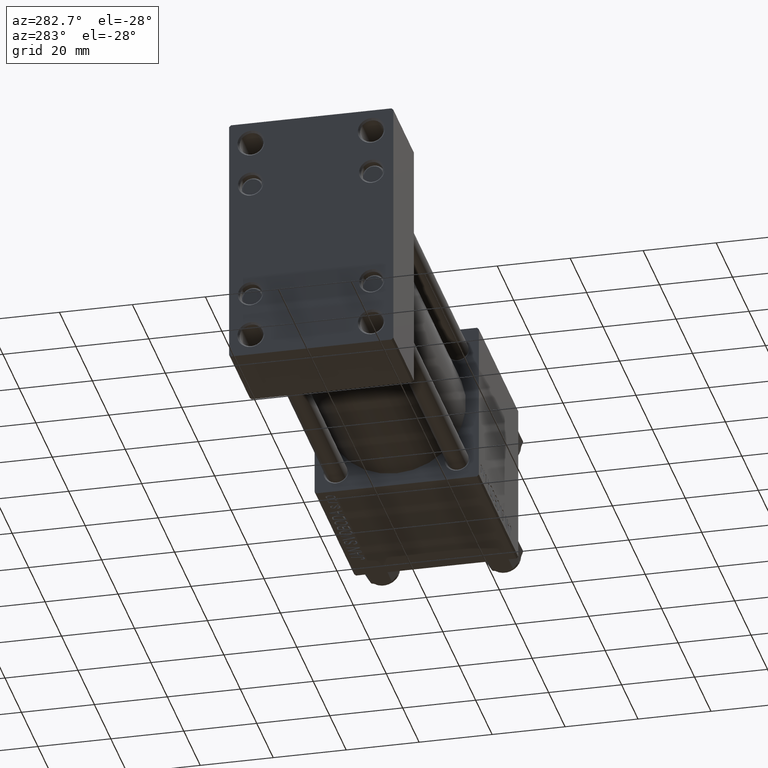
[diagram: clean part render]
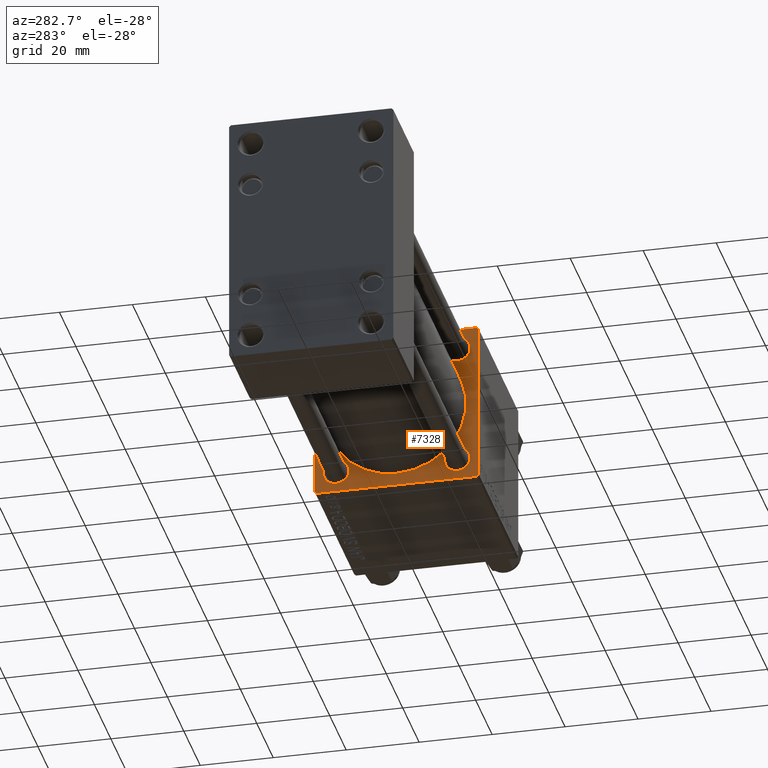
[diagram: same view with one face highlighted and labeled with its STEP entity id]
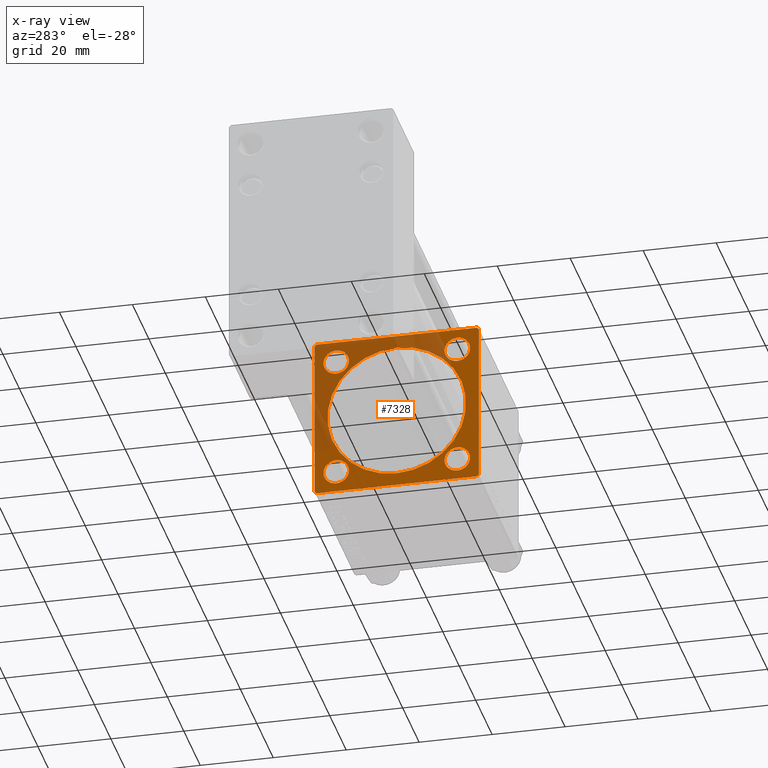
[diagram: x-ray of the same camera — body ghosted, the highlighted face saturated]
A machine part, auxiliary view. The second image highlights one B-rep face of the part: STEP entity #7328.
The next image is the same camera in x-ray: the body ghosted, the highlighted face saturated — about 39% of this face is hidden behind the body in this view.
In plain terms, the highlighted planar face has unit normal (-1, 0, 0).
Its self-contained STEP definition (entity closure, byte-faithful):
#76 = ORIENTED_EDGE ( 'NONE', *, *, #22341, .T. ) ;
#485 = ORIENTED_EDGE ( 'NONE', *, *, #8512, .T. ) ;
#507 = CARTESIAN_POINT ( 'NONE',  ( 104.0000000000000142, -16.59999999999999076, -20.10000000000000853 ) ) ;
#538 = ORIENTED_EDGE ( 'NONE', *, *, #49773, .T. ) ;
#776 = CARTESIAN_POINT ( 'NONE',  ( 104.0000000000000142, -21.99999999999998224, -22.50000000000000000 ) ) ;
#986 = LINE ( 'NONE', #24189, #39140 ) ;
#1079 = AXIS2_PLACEMENT_3D ( 'NONE', #4038, #26493, #7317 ) ;
#1581 = VERTEX_POINT ( 'NONE', #28882 ) ;
#1787 = DIRECTION ( 'NONE',  ( 0.000000000000000000, 0.000000000000000000, -1.000000000000000000 ) ) ;
#1903 = CIRCLE ( 'NONE', #26057, 19.00000000000000000 ) ;
#2482 = EDGE_CURVE ( 'NONE', #31292, #13385, #41376, .T. ) ;
#3019 = DIRECTION ( 'NONE',  ( 0.000000000000000000, -0.7071067811865425767, 0.7071067811865525687 ) ) ;
#3309 = VERTEX_POINT ( 'NONE', #45434 ) ;
#3504 = CIRCLE ( 'NONE', #1079, 3.500000000000003109 ) ;
#3834 = DIRECTION ( 'NONE',  ( 1.000000000000000000, -0.000000000000000000, 0.000000000000000000 ) ) ;
#4030 = DIRECTION ( 'NONE',  ( 0.000000000000000000, -1.000000000000000000, -2.312964634635742957E-16 ) ) ;
#4038 = CARTESIAN_POINT ( 'NONE',  ( 104.0000000000000142, -16.59999999999999076, -16.60000000000000853 ) ) ;
#4128 = FACE_BOUND ( 'NONE', #6607, .T. ) ;
#4467 = LINE ( 'NONE', #26674, #28035 ) ;
#4821 = DIRECTION ( 'NONE',  ( 1.000000000000000000, -0.000000000000000000, 0.000000000000000000 ) ) ;
#5170 = DIRECTION ( 'NONE',  ( 0.000000000000000000, 0.000000000000000000, 1.000000000000000000 ) ) ;
#5202 = DIRECTION ( 'NONE',  ( 0.000000000000000000, 0.000000000000000000, -1.000000000000000000 ) ) ;
#5860 = AXIS2_PLACEMENT_3D ( 'NONE', #31927, #39769, #5170 ) ;
#6607 = EDGE_LOOP ( 'NONE', ( #41638, #22645 ) ) ;
#6982 = LINE ( 'NONE', #22367, #34229 ) ;
#7317 = DIRECTION ( 'NONE',  ( 0.000000000000000000, 0.000000000000000000, 1.000000000000000000 ) ) ;
#7328 = ADVANCED_FACE ( 'NONE', ( #31372, #4128, #19480, #47063, #19991, #46558 ), #8149, .T. ) ;
#7836 = EDGE_CURVE ( 'NONE', #30314, #16580, #18880, .T. ) ;
#8149 = PLANE ( 'NONE',  #28488 ) ;
#8332 = AXIS2_PLACEMENT_3D ( 'NONE', #24235, #4821, #43473 ) ;
#8512 = EDGE_CURVE ( 'NONE', #13385, #31292, #30100, .T. ) ;
#8581 = EDGE_CURVE ( 'NONE', #24225, #47131, #1903, .T. ) ;
#8754 = VERTEX_POINT ( 'NONE', #18892 ) ;
#9558 = DIRECTION ( 'NONE',  ( -0.000000000000000000, -0.7071067811865376918, -0.7071067811865574537 ) ) ;
#10979 = DIRECTION ( 'NONE',  ( 0.000000000000000000, 0.000000000000000000, 1.000000000000000000 ) ) ;
#11426 = EDGE_CURVE ( 'NONE', #37526, #1581, #986, .T. ) ;
#11990 = EDGE_CURVE ( 'NONE', #45235, #31103, #35117, .T. ) ;
#13385 = VERTEX_POINT ( 'NONE', #22803 ) ;
#13486 = DIRECTION ( 'NONE',  ( 1.000000000000000000, -0.000000000000000000, 0.000000000000000000 ) ) ;
#13768 = LINE ( 'NONE', #29665, #27557 ) ;
#14744 = CARTESIAN_POINT ( 'NONE',  ( 104.0000000000000142, 16.59999999999999787, -16.60000000000000497 ) ) ;
#14854 = CARTESIAN_POINT ( 'NONE',  ( 104.0000000000000142, -22.25000000000015277, -22.24999999999984013 ) ) ;
#14923 = AXIS2_PLACEMENT_3D ( 'NONE', #27115, #37751, #19510 ) ;
#14942 = CARTESIAN_POINT ( 'NONE',  ( 104.0000000000000142, -2.602085213965210642E-15, 0.000000000000000000 ) ) ;
#15148 = LINE ( 'NONE', #21965, #27847 ) ;
#15290 = AXIS2_PLACEMENT_3D ( 'NONE', #42801, #34272, #35197 ) ;
#15401 = EDGE_CURVE ( 'NONE', #47131, #24225, #48961, .T. ) ;
#16207 = ORIENTED_EDGE ( 'NONE', *, *, #33377, .F. ) ;
#16580 = VERTEX_POINT ( 'NONE', #39260 ) ;
#17507 = VECTOR ( 'NONE', #5202, 1000.000000000000000 ) ;
#17872 = ORIENTED_EDGE ( 'NONE', *, *, #48288, .F. ) ;
#18400 = VERTEX_POINT ( 'NONE', #507 ) ;
#18663 = DIRECTION ( 'NONE',  ( 0.000000000000000000, 0.000000000000000000, -1.000000000000000000 ) ) ;
#18880 = LINE ( 'NONE', #14854, #29304 ) ;
#18892 = CARTESIAN_POINT ( 'NONE',  ( 104.0000000000000142, -16.59999999999999076, -13.10000000000000320 ) ) ;
#18924 = EDGE_LOOP ( 'NONE', ( #26537, #485 ) ) ;
#19027 = DIRECTION ( 'NONE',  ( 1.000000000000000000, -0.000000000000000000, 0.000000000000000000 ) ) ;
#19396 = ORIENTED_EDGE ( 'NONE', *, *, #11426, .T. ) ;
#19480 = FACE_BOUND ( 'NONE', #47567, .T. ) ;
#19510 = DIRECTION ( 'NONE',  ( 0.000000000000000000, 0.000000000000000000, 1.000000000000000000 ) ) ;
#19991 = FACE_BOUND ( 'NONE', #35844, .T. ) ;
#20822 = CARTESIAN_POINT ( 'NONE',  ( 104.0000000000000142, 22.50000000000000355, 22.50000000000000355 ) ) ;
#21425 = ORIENTED_EDGE ( 'NONE', *, *, #29776, .T. ) ;
#21595 = EDGE_CURVE ( 'NONE', #29995, #37526, #43851, .T. ) ;
#21965 = CARTESIAN_POINT ( 'NONE',  ( 104.0000000000000142, -22.49999999999999645, 22.49999999999999289 ) ) ;
#22341 = EDGE_CURVE ( 'NONE', #1581, #30314, #4467, .T. ) ;
#22367 = CARTESIAN_POINT ( 'NONE',  ( 104.0000000000000142, 22.25000000000031974, 22.24999999999970512 ) ) ;
#22645 = ORIENTED_EDGE ( 'NONE', *, *, #23471, .T. ) ;
#22803 = CARTESIAN_POINT ( 'NONE',  ( 104.0000000000000142, -16.59999999999999076, 13.10000000000003162 ) ) ;
#22846 = CARTESIAN_POINT ( 'NONE',  ( 104.0000000000000142, 16.59999999999999787, 20.10000000000001918 ) ) ;
#23187 = LINE ( 'NONE', #45467, #26665 ) ;
#23471 = EDGE_CURVE ( 'NONE', #31103, #45235, #47601, .T. ) ;
#23530 = CARTESIAN_POINT ( 'NONE',  ( 104.0000000000000142, 0.000000000000000000, 0.000000000000000000 ) ) ;
#24189 = CARTESIAN_POINT ( 'NONE',  ( 104.0000000000000142, 22.25000000000029843, -22.24999999999968026 ) ) ;
#24225 = VERTEX_POINT ( 'NONE', #34368 ) ;
#24235 = CARTESIAN_POINT ( 'NONE',  ( 104.0000000000000142, -16.59999999999999076, 16.60000000000000853 ) ) ;
#24341 = ORIENTED_EDGE ( 'NONE', *, *, #31031, .T. ) ;
#24480 = VERTEX_POINT ( 'NONE', #27959 ) ;
#26057 = AXIS2_PLACEMENT_3D ( 'NONE', #39934, #44226, #1787 ) ;
#26493 = DIRECTION ( 'NONE',  ( 1.000000000000000000, -0.000000000000000000, 0.000000000000000000 ) ) ;
#26537 = ORIENTED_EDGE ( 'NONE', *, *, #2482, .T. ) ;
#26665 = VECTOR ( 'NONE', #4030, 1000.000000000000000 ) ;
#26674 = CARTESIAN_POINT ( 'NONE',  ( 104.0000000000000142, 22.50000000000000355, -22.49999999999999645 ) ) ;
#27115 = CARTESIAN_POINT ( 'NONE',  ( 104.0000000000000142, 16.59999999999999787, 16.60000000000000497 ) ) ;
#27352 = AXIS2_PLACEMENT_3D ( 'NONE', #40040, #13486, #32185 ) ;
#27557 = VECTOR ( 'NONE', #29416, 1000.000000000000114 ) ;
#27761 = VERTEX_POINT ( 'NONE', #38082 ) ;
#27847 = VECTOR ( 'NONE', #18663, 1000.000000000000000 ) ;
#27959 = CARTESIAN_POINT ( 'NONE',  ( 104.0000000000000142, 16.59999999999999787, -13.10000000000000142 ) ) ;
#28035 = VECTOR ( 'NONE', #42108, 1000.000000000000000 ) ;
#28488 = AXIS2_PLACEMENT_3D ( 'NONE', #23530, #43021, #38974 ) ;
#28882 = CARTESIAN_POINT ( 'NONE',  ( 104.0000000000000142, 21.99999999999998934, -22.49999999999999645 ) ) ;
#29304 = VECTOR ( 'NONE', #3019, 999.9999999999998863 ) ;
#29416 = DIRECTION ( 'NONE',  ( -0.000000000000000000, 0.7071067811865474617, 0.7071067811865474617 ) ) ;
#29665 = CARTESIAN_POINT ( 'NONE',  ( 104.0000000000000142, -22.24999999999999289, 22.24999999999999289 ) ) ;
#29776 = EDGE_CURVE ( 'NONE', #24480, #3309, #35434, .T. ) ;
#29995 = VERTEX_POINT ( 'NONE', #47807 ) ;
#30100 = CIRCLE ( 'NONE', #8332, 3.499999999999975131 ) ;
#30252 = EDGE_LOOP ( 'NONE', ( #76, #39355, #17872, #45063, #16207, #538, #34375, #19396 ) ) ;
#30314 = VERTEX_POINT ( 'NONE', #776 ) ;
#30355 = DIRECTION ( 'NONE',  ( 1.000000000000000000, 0.000000000000000000, 0.000000000000000000 ) ) ;
#30640 = CIRCLE ( 'NONE', #37101, 3.500000000000003109 ) ;
#30703 = DIRECTION ( 'NONE',  ( 0.000000000000000000, 0.7071067811865378028, -0.7071067811865573427 ) ) ;
#30962 = CARTESIAN_POINT ( 'NONE',  ( 104.0000000000000142, -21.99999999999998224, 22.49999999999999289 ) ) ;
#31031 = EDGE_CURVE ( 'NONE', #18400, #8754, #30640, .T. ) ;
#31103 = VERTEX_POINT ( 'NONE', #31569 ) ;
#31292 = VERTEX_POINT ( 'NONE', #43166 ) ;
#31372 = FACE_BOUND ( 'NONE', #18924, .T. ) ;
#31569 = CARTESIAN_POINT ( 'NONE',  ( 104.0000000000000142, 16.59999999999999787, 13.09999999999998721 ) ) ;
#31927 = CARTESIAN_POINT ( 'NONE',  ( 104.0000000000000142, -16.59999999999999076, 16.60000000000000853 ) ) ;
#32113 = ORIENTED_EDGE ( 'NONE', *, *, #42978, .T. ) ;
#32185 = DIRECTION ( 'NONE',  ( 0.000000000000000000, 0.000000000000000000, 1.000000000000000000 ) ) ;
#32256 = CARTESIAN_POINT ( 'NONE',  ( 104.0000000000000142, -22.49999999999999645, 21.99999999999999289 ) ) ;
#32856 = VERTEX_POINT ( 'NONE', #30962 ) ;
#33377 = EDGE_CURVE ( 'NONE', #27761, #32856, #23187, .T. ) ;
#33758 = CARTESIAN_POINT ( 'NONE',  ( 104.0000000000000142, 22.50000000000000355, -21.99999999999995381 ) ) ;
#34229 = VECTOR ( 'NONE', #30703, 1000.000000000000000 ) ;
#34272 = DIRECTION ( 'NONE',  ( 1.000000000000000000, -0.000000000000000000, 0.000000000000000000 ) ) ;
#34368 = CARTESIAN_POINT ( 'NONE',  ( 104.0000000000000142, -2.602085213965210642E-15, 19.00000000000000000 ) ) ;
#34375 = ORIENTED_EDGE ( 'NONE', *, *, #21595, .T. ) ;
#35117 = CIRCLE ( 'NONE', #14923, 3.500000000000016875 ) ;
#35197 = DIRECTION ( 'NONE',  ( 0.000000000000000000, 0.000000000000000000, 1.000000000000000000 ) ) ;
#35239 = ORIENTED_EDGE ( 'NONE', *, *, #35271, .T. ) ;
#35271 = EDGE_CURVE ( 'NONE', #3309, #24480, #44405, .T. ) ;
#35434 = CIRCLE ( 'NONE', #27352, 3.500000000000003109 ) ;
#35844 = EDGE_LOOP ( 'NONE', ( #47440, #37198 ) ) ;
#36210 = CARTESIAN_POINT ( 'NONE',  ( 104.0000000000000142, -2.752562955852396712E-16, -19.00000000000000000 ) ) ;
#37101 = AXIS2_PLACEMENT_3D ( 'NONE', #38677, #3834, #49821 ) ;
#37198 = ORIENTED_EDGE ( 'NONE', *, *, #15401, .T. ) ;
#37526 = VERTEX_POINT ( 'NONE', #33758 ) ;
#37751 = DIRECTION ( 'NONE',  ( 1.000000000000000000, -0.000000000000000000, 0.000000000000000000 ) ) ;
#38082 = CARTESIAN_POINT ( 'NONE',  ( 104.0000000000000142, 22.00000000000001776, 22.50000000000000355 ) ) ;
#38677 = CARTESIAN_POINT ( 'NONE',  ( 104.0000000000000142, -16.59999999999999076, -16.60000000000000853 ) ) ;
#38974 = DIRECTION ( 'NONE',  ( -0.000000000000000000, 0.000000000000000000, 1.000000000000000000 ) ) ;
#39140 = VECTOR ( 'NONE', #9558, 999.9999999999998863 ) ;
#39260 = CARTESIAN_POINT ( 'NONE',  ( 104.0000000000000142, -22.49999999999999645, -21.99999999999997868 ) ) ;
#39265 = EDGE_CURVE ( 'NONE', #41083, #32856, #13768, .T. ) ;
#39355 = ORIENTED_EDGE ( 'NONE', *, *, #7836, .T. ) ;
#39769 = DIRECTION ( 'NONE',  ( 1.000000000000000000, -0.000000000000000000, 0.000000000000000000 ) ) ;
#39934 = CARTESIAN_POINT ( 'NONE',  ( 104.0000000000000142, -2.602085213965210642E-15, 0.000000000000000000 ) ) ;
#40040 = CARTESIAN_POINT ( 'NONE',  ( 104.0000000000000142, 16.59999999999999787, -16.60000000000000497 ) ) ;
#41083 = VERTEX_POINT ( 'NONE', #32256 ) ;
#41376 = CIRCLE ( 'NONE', #5860, 3.499999999999975131 ) ;
#41638 = ORIENTED_EDGE ( 'NONE', *, *, #11990, .T. ) ;
#42108 = DIRECTION ( 'NONE',  ( 0.000000000000000000, -1.000000000000000000, -7.709882115452476934E-17 ) ) ;
#42801 = CARTESIAN_POINT ( 'NONE',  ( 104.0000000000000142, 16.59999999999999787, 16.60000000000000497 ) ) ;
#42978 = EDGE_CURVE ( 'NONE', #8754, #18400, #3504, .T. ) ;
#43021 = DIRECTION ( 'NONE',  ( -1.000000000000000000, 0.000000000000000000, -0.000000000000000000 ) ) ;
#43166 = CARTESIAN_POINT ( 'NONE',  ( 104.0000000000000142, -16.59999999999999076, 20.09999999999998366 ) ) ;
#43473 = DIRECTION ( 'NONE',  ( 0.000000000000000000, 0.000000000000000000, 1.000000000000000000 ) ) ;
#43851 = LINE ( 'NONE', #20822, #17507 ) ;
#44226 = DIRECTION ( 'NONE',  ( 1.000000000000000000, 0.000000000000000000, 0.000000000000000000 ) ) ;
#44405 = CIRCLE ( 'NONE', #45982, 3.500000000000003109 ) ;
#44912 = AXIS2_PLACEMENT_3D ( 'NONE', #14942, #30355, #45790 ) ;
#45063 = ORIENTED_EDGE ( 'NONE', *, *, #39265, .T. ) ;
#45235 = VERTEX_POINT ( 'NONE', #22846 ) ;
#45434 = CARTESIAN_POINT ( 'NONE',  ( 104.0000000000000142, 16.59999999999999787, -20.10000000000000853 ) ) ;
#45467 = CARTESIAN_POINT ( 'NONE',  ( 104.0000000000000142, 22.50000000000000355, 22.50000000000000355 ) ) ;
#45790 = DIRECTION ( 'NONE',  ( 0.000000000000000000, 0.000000000000000000, -1.000000000000000000 ) ) ;
#45809 = EDGE_LOOP ( 'NONE', ( #32113, #24341 ) ) ;
#45982 = AXIS2_PLACEMENT_3D ( 'NONE', #14744, #19027, #10979 ) ;
#46558 = FACE_OUTER_BOUND ( 'NONE', #30252, .T. ) ;
#47063 = FACE_BOUND ( 'NONE', #45809, .T. ) ;
#47131 = VERTEX_POINT ( 'NONE', #36210 ) ;
#47440 = ORIENTED_EDGE ( 'NONE', *, *, #8581, .T. ) ;
#47567 = EDGE_LOOP ( 'NONE', ( #21425, #35239 ) ) ;
#47601 = CIRCLE ( 'NONE', #15290, 3.500000000000016875 ) ;
#47807 = CARTESIAN_POINT ( 'NONE',  ( 104.0000000000000142, 22.50000000000000355, 22.00000000000000355 ) ) ;
#48288 = EDGE_CURVE ( 'NONE', #41083, #16580, #15148, .T. ) ;
#48961 = CIRCLE ( 'NONE', #44912, 19.00000000000000000 ) ;
#49773 = EDGE_CURVE ( 'NONE', #27761, #29995, #6982, .T. ) ;
#49821 = DIRECTION ( 'NONE',  ( 0.000000000000000000, 0.000000000000000000, 1.000000000000000000 ) ) ;